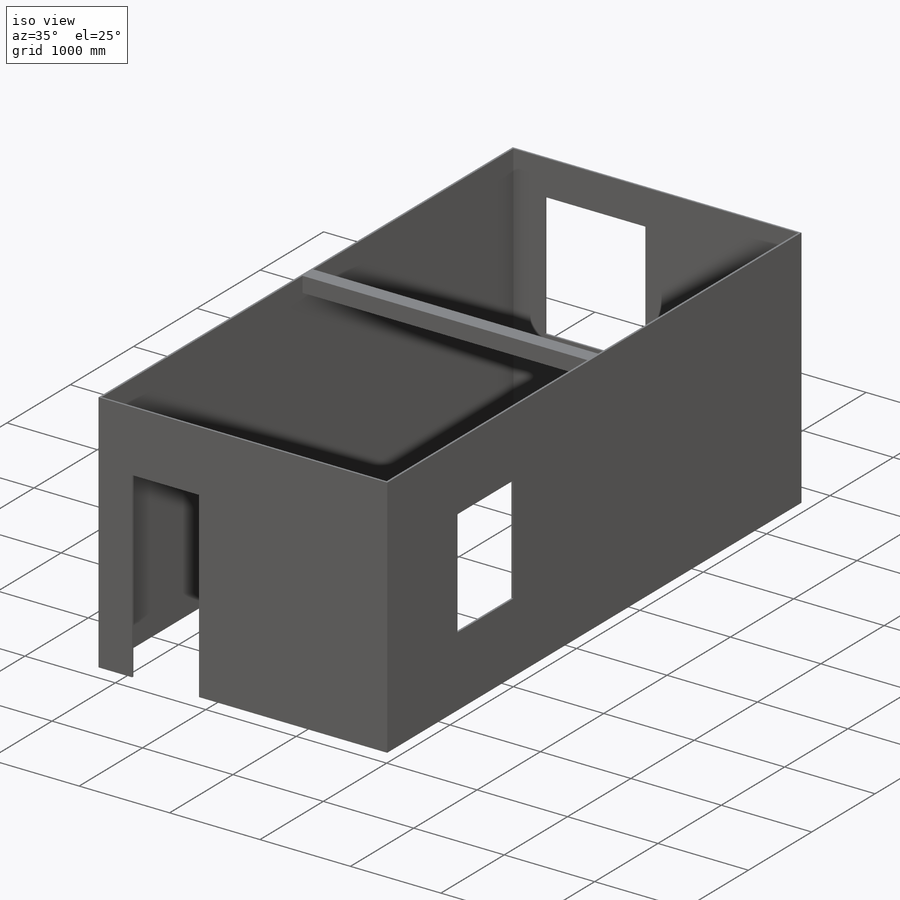
[diagram: iso view]
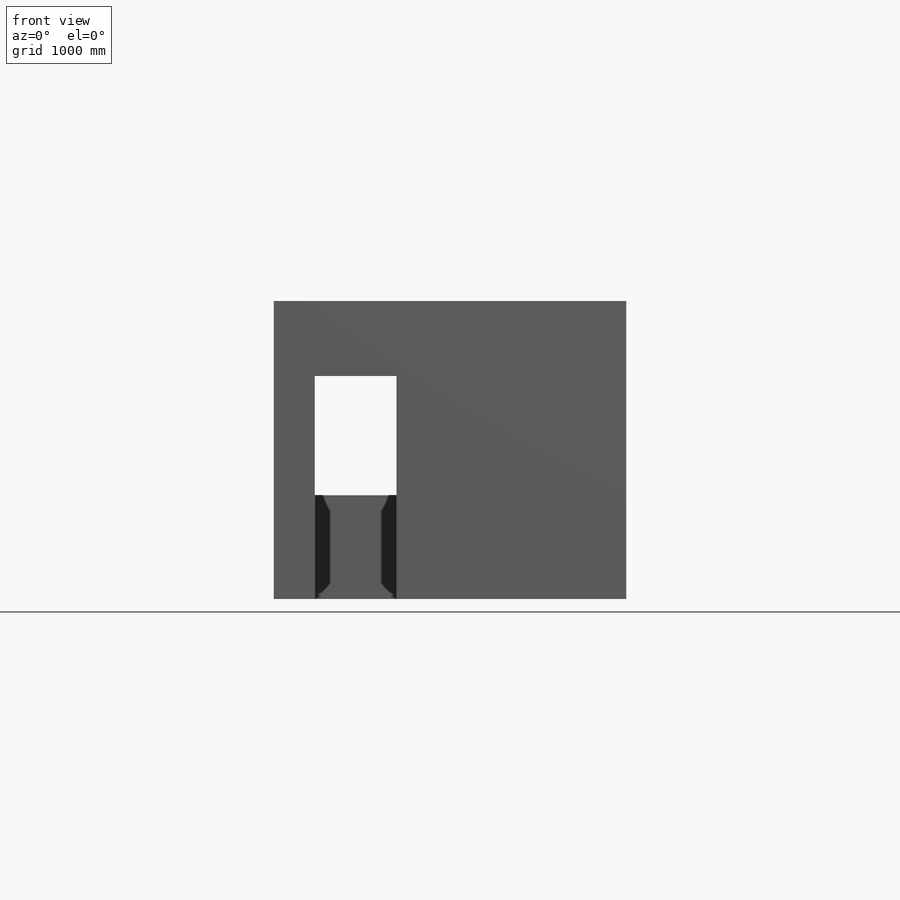
[diagram: front view]
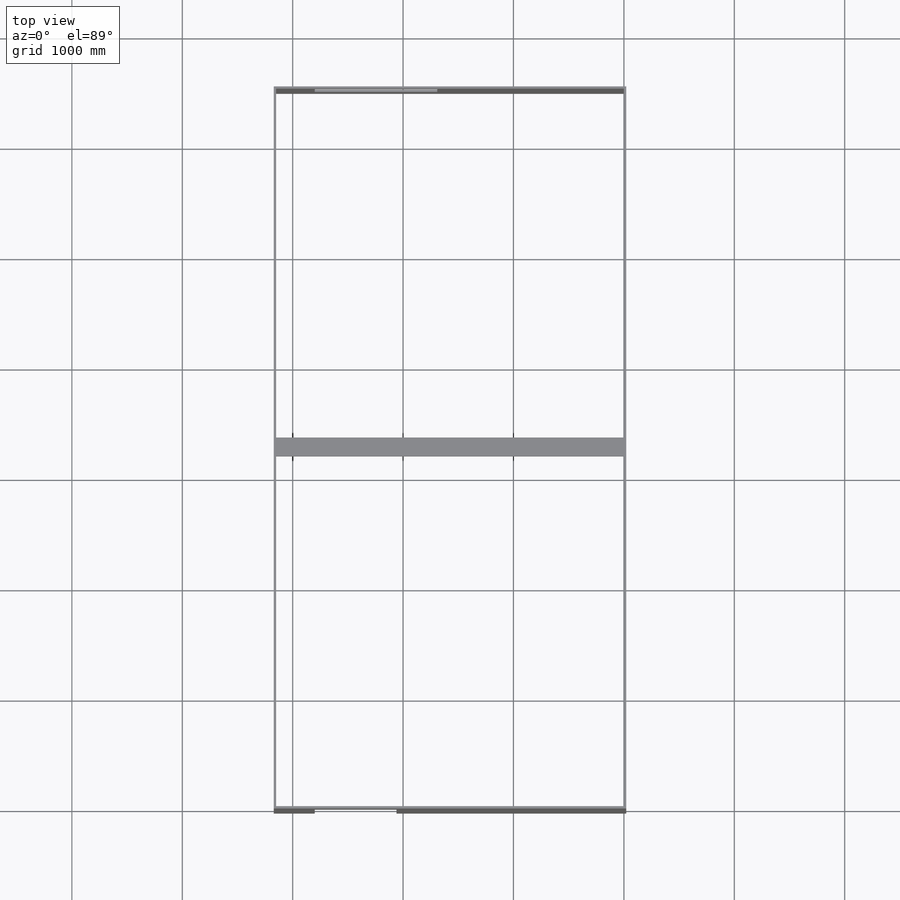
[diagram: top view]
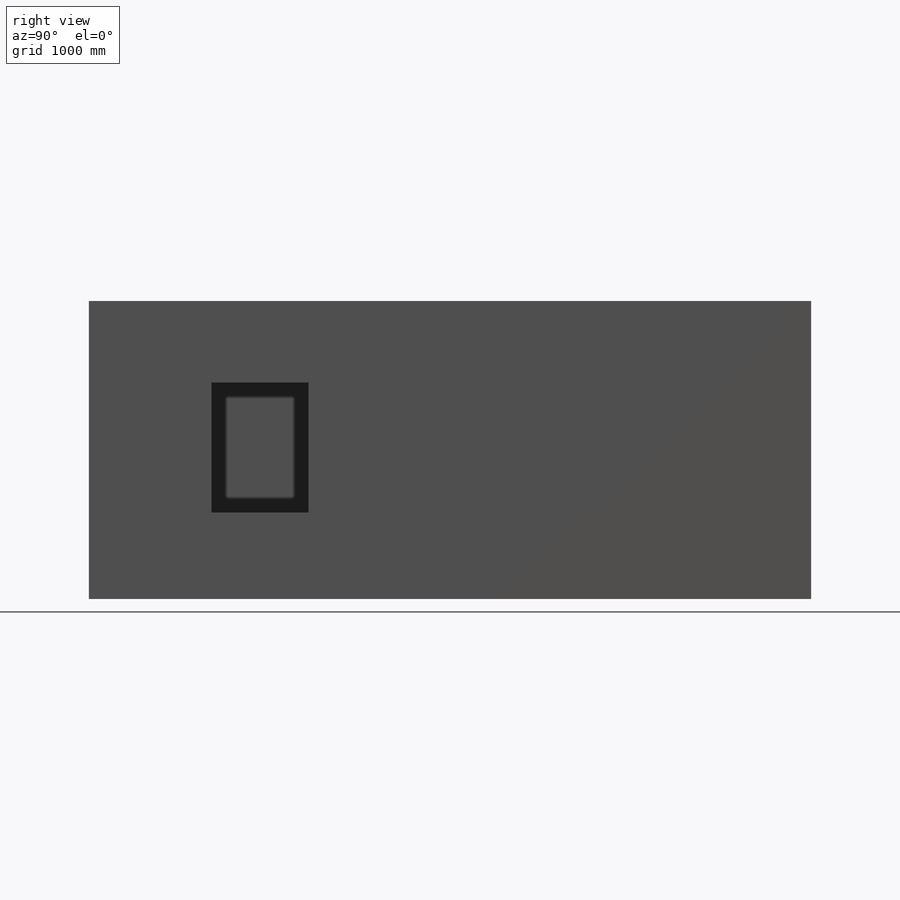
[diagram: right view]
SOLIDWORKS PART (.sldprt)
format: sldprt  version: not decoded by parser v0  size: 646,144 bytes
history: native  units: mm
features: sketch x5, plane x3, cut_extrude x3, material x1, extrude x1 (+9 scaffold rows collapsed)
feature tree (22):
  scaffold x9  (default folders/planes/origin — collapsed)
  material  "屋面瓦"
  plane  "前视基准面"
  plane  "上视基准面"
  plane  "右视基准面"
  sketch  "草图1"  dims[c1.D1=~98.159152mm c1.D2=~69.906702mm c2.D1=6500.0mm c2.D2=3150.0mm c3.D1=2700.0mm c3.D5=21.0mm c3.D6=10.0mm c3.D7=5.0mm]
  sketch  "草图2"  dims[c1.D1=~196.071366mm c1.D2=~90.062166mm c2.D1=350.0mm c2.D2=740.0mm c2.D3=2020.0mm]
  cut_extrude  "门"  [1 undecoded]
  sketch  "草图3"  dims[c1.D1=~131.688911mm c1.D2=~83.581982mm c2.D1=1090.0mm c2.D2=880.0mm c2.D3=780.0mm c2.D4=1180.0mm]
  cut_extrude  "窗1"  [1 undecoded]
  sketch  "草图4"  dims[c1.D1=~137.182739mm c1.D2=~81.374869mm c2.D1=1370.0mm c2.D2=1110.0mm c2.D3=350.0mm c2.D4=940.0mm]
  cut_extrude  "窗2"  [1 undecoded]
  sketch  "草图5"  dims[c1.D1=~34.984236mm c1.D2=~49.187092mm c2.D1=170.0mm c2.D2=170.0mm c2.D3=1200.0mm]
  extrude  "横梁"  [1 undecoded]
decode coverage: 5 of 9 modeling features carry decoded parameters
note: ~ marks probable driven/reference dimensions
note: 4 parameter values undecoded
summary: no parameter record found for 4 features
note: suppression state not decoded; provenance and decode notes live in map.json
